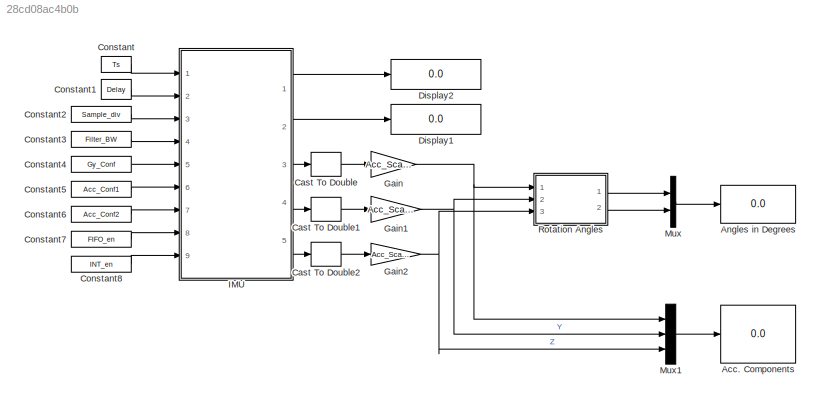
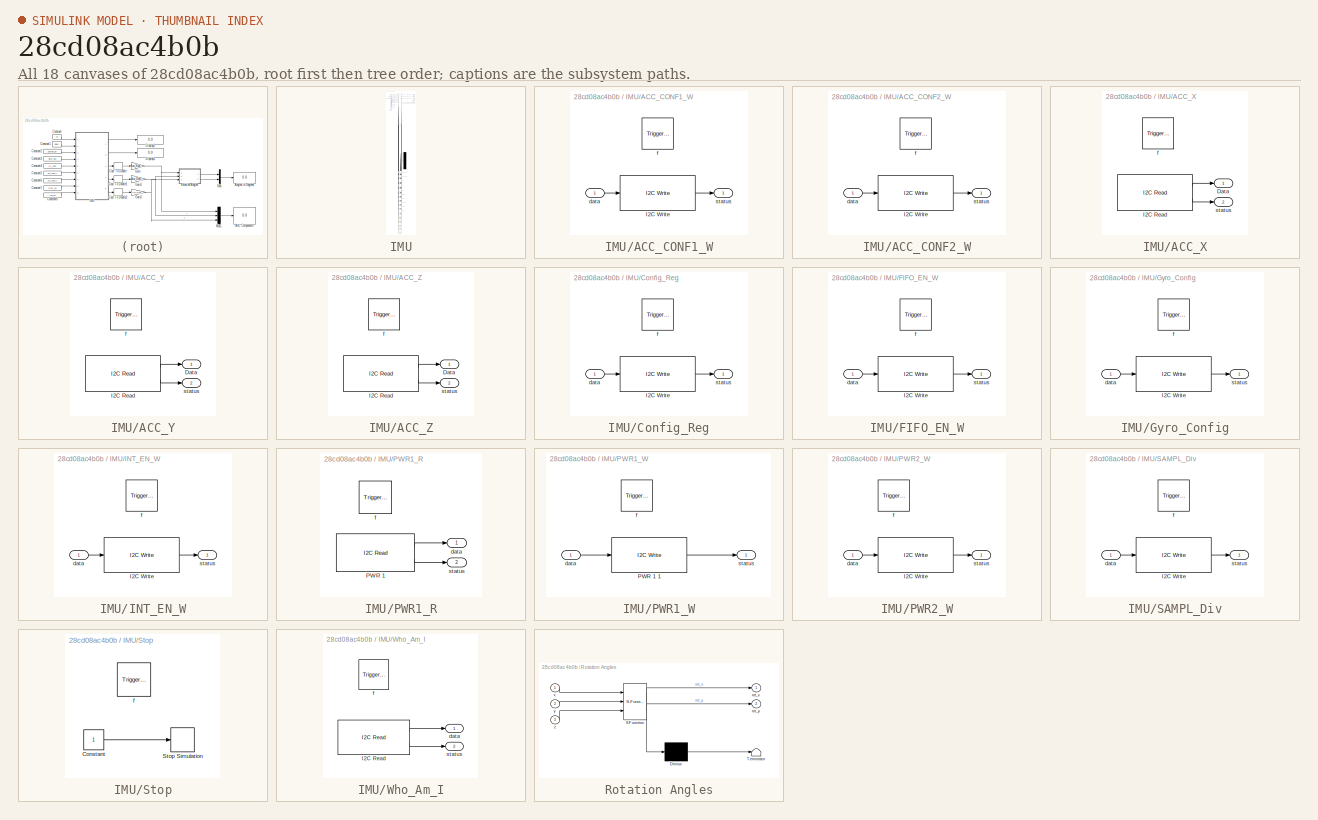
[diagram: thumbnail index - all 18 canvases of the model, root first then tree order]
MODEL slx_28cd08ac4b0b
KIND model
CONFIG AbsTol = auto
CONFIG EnableMultiTasking = on
CONFIG FixedStep = auto
CONFIG InitFcn = Ts=0.1;\nDelay=5;\nSample_div=uint8(9);\nFilter_BW=uint8(2);  %cutoff 92 Hz\nGy_Conf=uint8(0); %-250dps to 250 dps\nAcc_Conf1=uint8(0);\nAcc_Conf2=uint8(2);\nFIFO_en=uint8(0); % Disabled\nINT_en=uint8(0); % Disabled\nAcc_Scale=2*9.81/32767;\n\n%Registers\nIMU_Add=104;\nWho_Am_I=117;\nPWR_1=107;\nPWR_2=108;\nSAMPL_DIV=25;\nCONFIG_REG=26;\nGYRO_CONFIG=27;\nACC_CONFIG_1=28;\nACC_CONFIG_2=29;\nFIFO_EN=35;\nINT_EN=56;\nGY_X_...<+323ch>
CONFIG MaxStep = auto
CONFIG MinStep = auto
CONFIG RelTol = 1e-3
CONFIG SampleTimeConstraint = Unconstrained
CONFIG Solver = FixedStepAuto
CONFIG SolverName = FixedStepAuto
CONFIG StartTime = 0.0
CONFIG StopTime = inf
BLOCK [Display] Acc. Components
  Decimation = 1
  Ports = [1]
BLOCK [Display] Angles in Degrees
  Decimation = 1
  Ports = [1]
BLOCK [DataTypeConversion] Cast To Double
  OutDataTypeStr = double
  RndMeth = Floor
  SaturateOnIntegerOverflow = off
BLOCK [DataTypeConversion] Cast To Double1
  OutDataTypeStr = double
  RndMeth = Floor
  SaturateOnIntegerOverflow = off
BLOCK [DataTypeConversion] Cast To Double2
  OutDataTypeStr = double
  RndMeth = Floor
  SaturateOnIntegerOverflow = off
BLOCK [Constant] Constant
  Value = Ts
BLOCK [Constant] Constant1
  Value = Delay
BLOCK [Constant] Constant2
  Value = Sample_div
BLOCK [Constant] Constant3
  Value = Filter_BW
BLOCK [Constant] Constant4
  Value = Gy_Conf
BLOCK [Constant] Constant5
  Value = Acc_Conf1
BLOCK [Constant] Constant6
  Value = Acc_Conf2
BLOCK [Constant] Constant7
  Value = FIFO_en
BLOCK [Constant] Constant8
  Value = INT_en
BLOCK [Display] Display1
  Decimation = 1
  Ports = [1]
BLOCK [Display] Display2
  Decimation = 1
  Ports = [1]
BLOCK [Gain] Gain
  Gain = Acc_Scale
  OutDataTypeStr = Inherit: Inherit via internal rule
  ParamDataTypeStr = Inherit: Inherit via internal rule
  SaturateOnIntegerOverflow = off
BLOCK [Gain] Gain1
  Gain = Acc_Scale
  OutDataTypeStr = Inherit: Inherit via internal rule
  ParamDataTypeStr = Inherit: Inherit via internal rule
  SaturateOnIntegerOverflow = off
BLOCK [Gain] Gain2
  Gain = Acc_Scale
  OutDataTypeStr = Inherit: Inherit via internal rule
  ParamDataTypeStr = Inherit: Inherit via internal rule
  SaturateOnIntegerOverflow = off
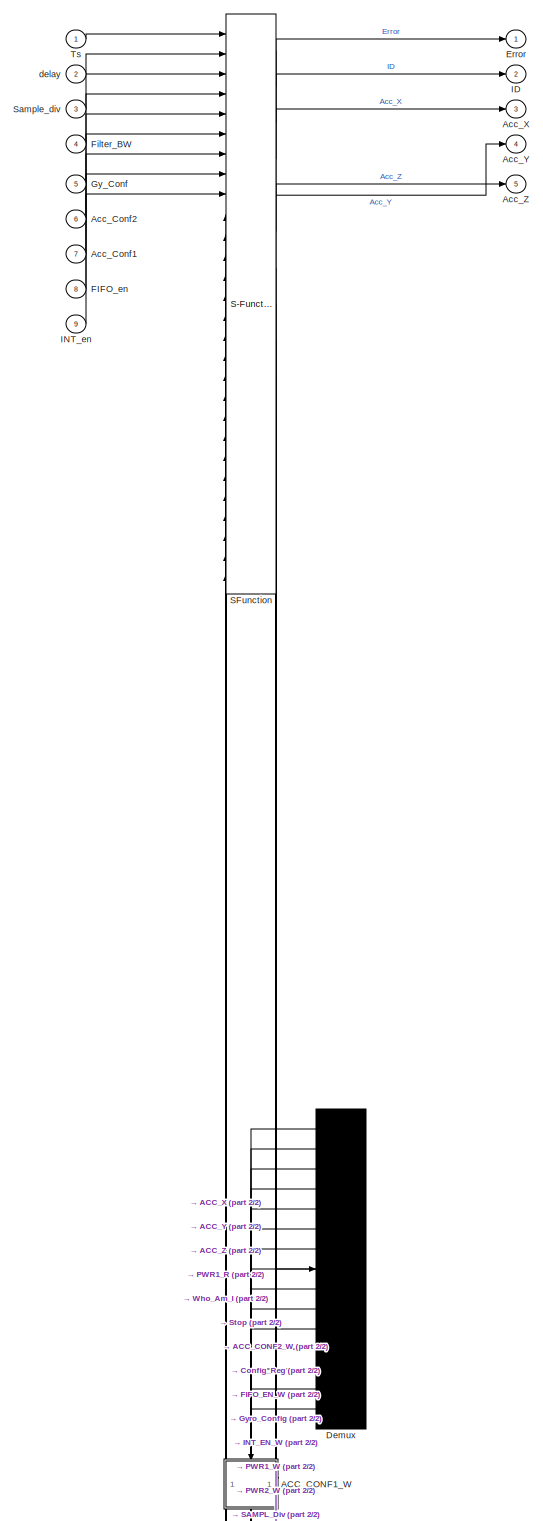
[diagram: IMU - part 1/2, full width, top band]
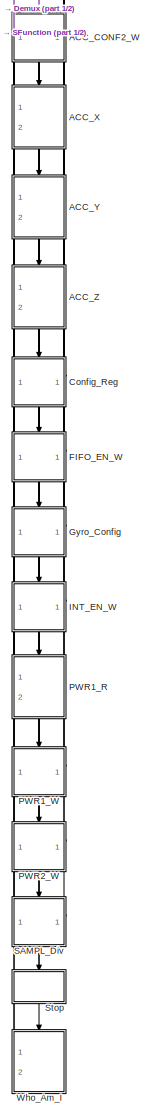
[diagram: IMU - part 2/2, bottom center region]
BLOCK [SubSystem] IMU
  ErrorFcn = Stateflow.Translate.translate
  PermitHierarchicalResolution = ExplicitOnly
  Ports = [9, 5]
  RequestExecContextInheritance = off
  SFBlockType = Chart
  TreatAsAtomicUnit = on
BLOCK [Demux] IMU/ Demux 
  Outputs = 15
  Ports = [1, 15]
BLOCK [S-Function] IMU/ SFunction 
  EnableBusSupport = on
  FunctionName = sf_sfun
  PortCounts = [28 15]
  Ports = [28, 15]
  SFcnIsStateOwnerBlock = off
  SFunctionDeploymentMode = off
  Tag = Stateflow S-Function IMU 3
BLOCK [SubSystem] IMU/ACC_CONF1_W
  Ports = [1, 1, 0, 1]
  PreDeleteFcn = Stateflow.SLINSF.SimulinkMan.removePreDeleteFcn
  RequestExecContextInheritance = off
  UndoDeleteFcn = Stateflow.SLINSF.SimulinkMan.restorePreDeleteFcn
BLOCK [Reference] IMU/ACC_CONF1_W/I2C Write  REF=arduinolib/I2C Write
  Ports = [1, 1]
  SourceBlock = arduinolib/I2C Write
  SourceProductBaseCode = ARDUINO
  SourceProductName = Simulink Support Package for Arduino Hardware
  SourceType = I2C Write
BLOCK [Inport] IMU/ACC_CONF1_W/data
  IconDisplay = Port number
  OutDataTypeStr = uint8
  PortDimensions = 1
  SignalType = real
  VarSizeSig = No
BLOCK [TriggerPort] IMU/ACC_CONF1_W/f
  CopyFcn = Stateflow.SLINSF.SimulinkMan.removeBlockPreDeleteFcn
  Ports = []
  PreDeleteFcn = Stateflow.SLINSF.SimulinkMan.unsafePredeleteFcn
  StatesWhenEnabling = held
  TriggerType = function-call
  VariantControl = (inherit)
BLOCK [Outport] IMU/ACC_CONF1_W/status
  IconDisplay = Port number
  VectorParamsAs1DForOutWhenUnconnected = off
BLOCK [SubSystem] IMU/ACC_CONF2_W
  Ports = [1, 1, 0, 1]
  PreDeleteFcn = Stateflow.SLINSF.SimulinkMan.removePreDeleteFcn
  RequestExecContextInheritance = off
  UndoDeleteFcn = Stateflow.SLINSF.SimulinkMan.restorePreDeleteFcn
BLOCK [Reference] IMU/ACC_CONF2_W/I2C Write  REF=arduinolib/I2C Write
  Ports = [1, 1]
  SourceBlock = arduinolib/I2C Write
  SourceProductBaseCode = ARDUINO
  SourceProductName = Simulink Support Package for Arduino Hardware
  SourceType = I2C Write
BLOCK [Inport] IMU/ACC_CONF2_W/data
  IconDisplay = Port number
  OutDataTypeStr = uint8
  PortDimensions = 1
  SignalType = real
  VarSizeSig = No
BLOCK [TriggerPort] IMU/ACC_CONF2_W/f
  CopyFcn = Stateflow.SLINSF.SimulinkMan.removeBlockPreDeleteFcn
  Ports = []
  PreDeleteFcn = Stateflow.SLINSF.SimulinkMan.unsafePredeleteFcn
  StatesWhenEnabling = held
  TriggerType = function-call
  VariantControl = (inherit)
BLOCK [Outport] IMU/ACC_CONF2_W/status
  IconDisplay = Port number
  VectorParamsAs1DForOutWhenUnconnected = off
BLOCK [SubSystem] IMU/ACC_X
  Ports = [0, 2, 0, 1]
  PreDeleteFcn = Stateflow.SLINSF.SimulinkMan.removePreDeleteFcn
  RequestExecContextInheritance = off
  UndoDeleteFcn = Stateflow.SLINSF.SimulinkMan.restorePreDeleteFcn
BLOCK [Outport] IMU/ACC_X/Data
  IconDisplay = Port number
  VectorParamsAs1DForOutWhenUnconnected = off
BLOCK [Reference] IMU/ACC_X/I2C Read  REF=arduinolib/I2C Read
  Ports = [0, 2]
  SourceBlock = arduinolib/I2C Read
  SourceProductBaseCode = ARDUINO
  SourceProductName = Simulink Support Package for Arduino Hardware
  SourceType = I2C Read
BLOCK [TriggerPort] IMU/ACC_X/f
  CopyFcn = Stateflow.SLINSF.SimulinkMan.removeBlockPreDeleteFcn
  Ports = []
  PreDeleteFcn = Stateflow.SLINSF.SimulinkMan.unsafePredeleteFcn
  StatesWhenEnabling = held
  TriggerType = function-call
  VariantControl = (inherit)
BLOCK [Outport] IMU/ACC_X/status
  IconDisplay = Port number
  Port = 2
  VectorParamsAs1DForOutWhenUnconnected = off
BLOCK [SubSystem] IMU/ACC_Y
  Ports = [0, 2, 0, 1]
  PreDeleteFcn = Stateflow.SLINSF.SimulinkMan.removePreDeleteFcn
  RequestExecContextInheritance = off
  UndoDeleteFcn = Stateflow.SLINSF.SimulinkMan.restorePreDeleteFcn
BLOCK [Outport] IMU/ACC_Y/Data
  IconDisplay = Port number
  VectorParamsAs1DForOutWhenUnconnected = off
BLOCK [Reference] IMU/ACC_Y/I2C Read  REF=arduinolib/I2C Read
  Ports = [0, 2]
  SourceBlock = arduinolib/I2C Read
  SourceProductBaseCode = ARDUINO
  SourceProductName = Simulink Support Package for Arduino Hardware
  SourceType = I2C Read
BLOCK [TriggerPort] IMU/ACC_Y/f
  CopyFcn = Stateflow.SLINSF.SimulinkMan.removeBlockPreDeleteFcn
  Ports = []
  PreDeleteFcn = Stateflow.SLINSF.SimulinkMan.unsafePredeleteFcn
  StatesWhenEnabling = held
  TriggerType = function-call
  VariantControl = (inherit)
BLOCK [Outport] IMU/ACC_Y/status
  IconDisplay = Port number
  Port = 2
  VectorParamsAs1DForOutWhenUnconnected = off
BLOCK [SubSystem] IMU/ACC_Z
  Ports = [0, 2, 0, 1]
  PreDeleteFcn = Stateflow.SLINSF.SimulinkMan.removePreDeleteFcn
  RequestExecContextInheritance = off
  UndoDeleteFcn = Stateflow.SLINSF.SimulinkMan.restorePreDeleteFcn
BLOCK [Outport] IMU/ACC_Z/Data
  IconDisplay = Port number
  VectorParamsAs1DForOutWhenUnconnected = off
BLOCK [Reference] IMU/ACC_Z/I2C Read  REF=arduinolib/I2C Read
  Ports = [0, 2]
  SourceBlock = arduinolib/I2C Read
  SourceProductBaseCode = ARDUINO
  SourceProductName = Simulink Support Package for Arduino Hardware
  SourceType = I2C Read
BLOCK [TriggerPort] IMU/ACC_Z/f
  CopyFcn = Stateflow.SLINSF.SimulinkMan.removeBlockPreDeleteFcn
  Ports = []
  PreDeleteFcn = Stateflow.SLINSF.SimulinkMan.unsafePredeleteFcn
  StatesWhenEnabling = held
  TriggerType = function-call
  VariantControl = (inherit)
BLOCK [Outport] IMU/ACC_Z/status
  IconDisplay = Port number
  Port = 2
  VectorParamsAs1DForOutWhenUnconnected = off
BLOCK [Inport] IMU/Acc_Conf1
  IconDisplay = Port number
  Port = 7
BLOCK [Inport] IMU/Acc_Conf2
  IconDisplay = Port number
  Port = 6
BLOCK [Outport] IMU/Acc_X
  IconDisplay = Port number
  Port = 3
BLOCK [Outport] IMU/Acc_Y
  IconDisplay = Port number
  Port = 4
BLOCK [Outport] IMU/Acc_Z
  IconDisplay = Port number
  Port = 5
BLOCK [SubSystem] IMU/Config_Reg
  Ports = [1, 1, 0, 1]
  PreDeleteFcn = Stateflow.SLINSF.SimulinkMan.removePreDeleteFcn
  RequestExecContextInheritance = off
  UndoDeleteFcn = Stateflow.SLINSF.SimulinkMan.restorePreDeleteFcn
BLOCK [Reference] IMU/Config_Reg/I2C Write  REF=arduinolib/I2C Write
  Ports = [1, 1]
  SourceBlock = arduinolib/I2C Write
  SourceProductBaseCode = ARDUINO
  SourceProductName = Simulink Support Package for Arduino Hardware
  SourceType = I2C Write
BLOCK [Inport] IMU/Config_Reg/data
  IconDisplay = Port number
  OutDataTypeStr = uint8
  PortDimensions = 1
  SignalType = real
  VarSizeSig = No
BLOCK [TriggerPort] IMU/Config_Reg/f
  CopyFcn = Stateflow.SLINSF.SimulinkMan.removeBlockPreDeleteFcn
  Ports = []
  PreDeleteFcn = Stateflow.SLINSF.SimulinkMan.unsafePredeleteFcn
  StatesWhenEnabling = held
  TriggerType = function-call
  VariantControl = (inherit)
BLOCK [Outport] IMU/Config_Reg/status
  IconDisplay = Port number
  VectorParamsAs1DForOutWhenUnconnected = off
BLOCK [Outport] IMU/Error
  IconDisplay = Port number
  VectorParamsAs1DForOutWhenUnconnected = off
BLOCK [SubSystem] IMU/FIFO_EN_W
  Ports = [1, 1, 0, 1]
  PreDeleteFcn = Stateflow.SLINSF.SimulinkMan.removePreDeleteFcn
  RequestExecContextInheritance = off
  UndoDeleteFcn = Stateflow.SLINSF.SimulinkMan.restorePreDeleteFcn
BLOCK [Reference] IMU/FIFO_EN_W/I2C Write  REF=arduinolib/I2C Write
  Ports = [1, 1]
  SourceBlock = arduinolib/I2C Write
  SourceProductBaseCode = ARDUINO
  SourceProductName = Simulink Support Package for Arduino Hardware
  SourceType = I2C Write
BLOCK [Inport] IMU/FIFO_EN_W/data
  IconDisplay = Port number
  OutDataTypeStr = uint8
  PortDimensions = 1
  SignalType = real
  VarSizeSig = No
BLOCK [TriggerPort] IMU/FIFO_EN_W/f
  CopyFcn = Stateflow.SLINSF.SimulinkMan.removeBlockPreDeleteFcn
  Ports = []
  PreDeleteFcn = Stateflow.SLINSF.SimulinkMan.unsafePredeleteFcn
  StatesWhenEnabling = held
  TriggerType = function-call
  VariantControl = (inherit)
BLOCK [Outport] IMU/FIFO_EN_W/status
  IconDisplay = Port number
  VectorParamsAs1DForOutWhenUnconnected = off
BLOCK [Inport] IMU/FIFO_en
  IconDisplay = Port number
  Port = 8
BLOCK [Inport] IMU/Filter_BW
  IconDisplay = Port number
  Port = 4
BLOCK [Inport] IMU/Gy_Conf
  IconDisplay = Port number
  Port = 5
BLOCK [SubSystem] IMU/Gyro_Config
  Ports = [1, 1, 0, 1]
  PreDeleteFcn = Stateflow.SLINSF.SimulinkMan.removePreDeleteFcn
  RequestExecContextInheritance = off
  UndoDeleteFcn = Stateflow.SLINSF.SimulinkMan.restorePreDeleteFcn
BLOCK [Reference] IMU/Gyro_Config/I2C Write  REF=arduinolib/I2C Write
  Ports = [1, 1]
  SourceBlock = arduinolib/I2C Write
  SourceProductBaseCode = ARDUINO
  SourceProductName = Simulink Support Package for Arduino Hardware
  SourceType = I2C Write
BLOCK [Inport] IMU/Gyro_Config/data
  IconDisplay = Port number
  OutDataTypeStr = uint8
  PortDimensions = 1
  SignalType = real
  VarSizeSig = No
BLOCK [TriggerPort] IMU/Gyro_Config/f
  CopyFcn = Stateflow.SLINSF.SimulinkMan.removeBlockPreDeleteFcn
  Ports = []
  PreDeleteFcn = Stateflow.SLINSF.SimulinkMan.unsafePredeleteFcn
  StatesWhenEnabling = held
  TriggerType = function-call
  VariantControl = (inherit)
BLOCK [Outport] IMU/Gyro_Config/status
  IconDisplay = Port number
  VectorParamsAs1DForOutWhenUnconnected = off
BLOCK [Outport] IMU/ID
  IconDisplay = Port number
  Port = 2
  VectorParamsAs1DForOutWhenUnconnected = off
BLOCK [SubSystem] IMU/INT_EN_W
  Ports = [1, 1, 0, 1]
  PreDeleteFcn = Stateflow.SLINSF.SimulinkMan.removePreDeleteFcn
  RequestExecContextInheritance = off
  UndoDeleteFcn = Stateflow.SLINSF.SimulinkMan.restorePreDeleteFcn
BLOCK [Reference] IMU/INT_EN_W/I2C Write  REF=arduinolib/I2C Write
  Ports = [1, 1]
  SourceBlock = arduinolib/I2C Write
  SourceProductBaseCode = ARDUINO
  SourceProductName = Simulink Support Package for Arduino Hardware
  SourceType = I2C Write
BLOCK [Inport] IMU/INT_EN_W/data
  IconDisplay = Port number
  OutDataTypeStr = uint8
  PortDimensions = 1
  SignalType = real
  VarSizeSig = No
BLOCK [TriggerPort] IMU/INT_EN_W/f
  CopyFcn = Stateflow.SLINSF.SimulinkMan.removeBlockPreDeleteFcn
  Ports = []
  PreDeleteFcn = Stateflow.SLINSF.SimulinkMan.unsafePredeleteFcn
  StatesWhenEnabling = held
  TriggerType = function-call
  VariantControl = (inherit)
BLOCK [Outport] IMU/INT_EN_W/status
  IconDisplay = Port number
  VectorParamsAs1DForOutWhenUnconnected = off
BLOCK [Inport] IMU/INT_en
  IconDisplay = Port number
  Port = 9
BLOCK [SubSystem] IMU/PWR1_R
  Ports = [0, 2, 0, 1]
  PreDeleteFcn = Stateflow.SLINSF.SimulinkMan.removePreDeleteFcn
  RequestExecContextInheritance = off
  UndoDeleteFcn = Stateflow.SLINSF.SimulinkMan.restorePreDeleteFcn
BLOCK [Reference] IMU/PWR1_R/PWR 1  REF=arduinolib/I2C Read
  Ports = [0, 2]
  SourceBlock = arduinolib/I2C Read
  SourceProductBaseCode = ARDUINO
  SourceProductName = Simulink Support Package for Arduino Hardware
  SourceType = I2C Read
BLOCK [Outport] IMU/PWR1_R/data
  IconDisplay = Port number
  VectorParamsAs1DForOutWhenUnconnected = off
BLOCK [TriggerPort] IMU/PWR1_R/f
  CopyFcn = Stateflow.SLINSF.SimulinkMan.removeBlockPreDeleteFcn
  Ports = []
  PreDeleteFcn = Stateflow.SLINSF.SimulinkMan.unsafePredeleteFcn
  StatesWhenEnabling = held
  TriggerType = function-call
  VariantControl = (inherit)
BLOCK [Outport] IMU/PWR1_R/status
  IconDisplay = Port number
  Port = 2
  VectorParamsAs1DForOutWhenUnconnected = off
BLOCK [SubSystem] IMU/PWR1_W
  Ports = [1, 1, 0, 1]
  PreDeleteFcn = Stateflow.SLINSF.SimulinkMan.removePreDeleteFcn
  RequestExecContextInheritance = off
  UndoDeleteFcn = Stateflow.SLINSF.SimulinkMan.restorePreDeleteFcn
BLOCK [Reference] IMU/PWR1_W/PWR 1 1  REF=arduinolib/I2C Write
  Ports = [1, 1]
  SourceBlock = arduinolib/I2C Write
  SourceProductBaseCode = ARDUINO
  SourceProductName = Simulink Support Package for Arduino Hardware
  SourceType = I2C Write
BLOCK [Inport] IMU/PWR1_W/data
  IconDisplay = Port number
  OutDataTypeStr = uint8
  PortDimensions = 1
  SignalType = real
  VarSizeSig = No
BLOCK [TriggerPort] IMU/PWR1_W/f
  CopyFcn = Stateflow.SLINSF.SimulinkMan.removeBlockPreDeleteFcn
  Ports = []
  PreDeleteFcn = Stateflow.SLINSF.SimulinkMan.unsafePredeleteFcn
  StatesWhenEnabling = held
  TriggerType = function-call
  VariantControl = (inherit)
BLOCK [Outport] IMU/PWR1_W/status
  IconDisplay = Port number
  VectorParamsAs1DForOutWhenUnconnected = off
BLOCK [SubSystem] IMU/PWR2_W
  Ports = [1, 1, 0, 1]
  PreDeleteFcn = Stateflow.SLINSF.SimulinkMan.removePreDeleteFcn
  RequestExecContextInheritance = off
  UndoDeleteFcn = Stateflow.SLINSF.SimulinkMan.restorePreDeleteFcn
BLOCK [Reference] IMU/PWR2_W/I2C Write  REF=arduinolib/I2C Write
  Ports = [1, 1]
  SourceBlock = arduinolib/I2C Write
  SourceProductBaseCode = ARDUINO
  SourceProductName = Simulink Support Package for Arduino Hardware
  SourceType = I2C Write
BLOCK [Inport] IMU/PWR2_W/data
  IconDisplay = Port number
  OutDataTypeStr = uint8
  PortDimensions = 1
  SignalType = real
  VarSizeSig = No
BLOCK [TriggerPort] IMU/PWR2_W/f
  CopyFcn = Stateflow.SLINSF.SimulinkMan.removeBlockPreDeleteFcn
  Ports = []
  PreDeleteFcn = Stateflow.SLINSF.SimulinkMan.unsafePredeleteFcn
  StatesWhenEnabling = held
  TriggerType = function-call
  VariantControl = (inherit)
BLOCK [Outport] IMU/PWR2_W/status
  IconDisplay = Port number
  VectorParamsAs1DForOutWhenUnconnected = off
BLOCK [SubSystem] IMU/SAMPL_Div
  Ports = [1, 1, 0, 1]
  PreDeleteFcn = Stateflow.SLINSF.SimulinkMan.removePreDeleteFcn
  RequestExecContextInheritance = off
  UndoDeleteFcn = Stateflow.SLINSF.SimulinkMan.restorePreDeleteFcn
BLOCK [Reference] IMU/SAMPL_Div/I2C Write  REF=arduinolib/I2C Write
  Ports = [1, 1]
  SourceBlock = arduinolib/I2C Write
  SourceProductBaseCode = ARDUINO
  SourceProductName = Simulink Support Package for Arduino Hardware
  SourceType = I2C Write
BLOCK [Inport] IMU/SAMPL_Div/data
  IconDisplay = Port number
  OutDataTypeStr = uint8
  PortDimensions = 1
  SignalType = real
  VarSizeSig = No
BLOCK [TriggerPort] IMU/SAMPL_Div/f
  CopyFcn = Stateflow.SLINSF.SimulinkMan.removeBlockPreDeleteFcn
  Ports = []
  PreDeleteFcn = Stateflow.SLINSF.SimulinkMan.unsafePredeleteFcn
  StatesWhenEnabling = held
  TriggerType = function-call
  VariantControl = (inherit)
BLOCK [Outport] IMU/SAMPL_Div/status
  IconDisplay = Port number
  VectorParamsAs1DForOutWhenUnconnected = off
BLOCK [Inport] IMU/Sample_div
  IconDisplay = Port number
  Port = 3
BLOCK [SubSystem] IMU/Stop
  Ports = [0, 0, 0, 1]
  PreDeleteFcn = Stateflow.SLINSF.SimulinkMan.removePreDeleteFcn
  RequestExecContextInheritance = off
  UndoDeleteFcn = Stateflow.SLINSF.SimulinkMan.restorePreDeleteFcn
BLOCK [Constant] IMU/Stop/Constant
BLOCK [Stop] IMU/Stop/Stop Simulation
BLOCK [TriggerPort] IMU/Stop/f
  CopyFcn = Stateflow.SLINSF.SimulinkMan.removeBlockPreDeleteFcn
  Ports = []
  PreDeleteFcn = Stateflow.SLINSF.SimulinkMan.unsafePredeleteFcn
  StatesWhenEnabling = held
  TriggerType = function-call
  VariantControl = (inherit)
BLOCK [Inport] IMU/Ts
  IconDisplay = Port number
BLOCK [SubSystem] IMU/Who_Am_I
  Ports = [0, 2, 0, 1]
  PreDeleteFcn = Stateflow.SLINSF.SimulinkMan.removePreDeleteFcn
  RequestExecContextInheritance = off
  UndoDeleteFcn = Stateflow.SLINSF.SimulinkMan.restorePreDeleteFcn
BLOCK [Reference] IMU/Who_Am_I/I2C Read  REF=arduinolib/I2C Read
  Ports = [0, 2]
  SourceBlock = arduinolib/I2C Read
  SourceProductBaseCode = ARDUINO
  SourceProductName = Simulink Support Package for Arduino Hardware
  SourceType = I2C Read
BLOCK [Outport] IMU/Who_Am_I/data
  IconDisplay = Port number
  VectorParamsAs1DForOutWhenUnconnected = off
BLOCK [TriggerPort] IMU/Who_Am_I/f
  CopyFcn = Stateflow.SLINSF.SimulinkMan.removeBlockPreDeleteFcn
  Ports = []
  PreDeleteFcn = Stateflow.SLINSF.SimulinkMan.unsafePredeleteFcn
  StatesWhenEnabling = held
  TriggerType = function-call
  VariantControl = (inherit)
BLOCK [Outport] IMU/Who_Am_I/status
  IconDisplay = Port number
  Port = 2
  VectorParamsAs1DForOutWhenUnconnected = off
BLOCK [Inport] IMU/delay
  IconDisplay = Port number
  Port = 2
BLOCK [Mux] Mux
  DisplayOption = bar
  Inputs = 2
  Ports = [2, 1]
BLOCK [Mux] Mux1
  DisplayOption = bar
  Inputs = 3
  Ports = [3, 1]
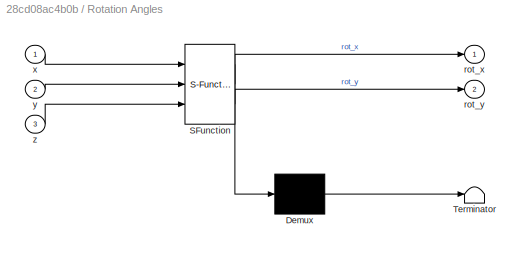
BLOCK [SubSystem] Rotation Angles
  ErrorFcn = Stateflow.Translate.translate
  PermitHierarchicalResolution = ExplicitOnly
  Ports = [3, 2]
  RequestExecContextInheritance = off
  SFBlockType = MATLAB Function
  TreatAsAtomicUnit = on
BLOCK [Demux] Rotation Angles/ Demux 
  Outputs = 1
  Ports = [1, 1]
BLOCK [S-Function] Rotation Angles/ SFunction 
  EnableBusSupport = on
  FunctionName = sf_sfun
  PortCounts = [3 3]
  Ports = [3, 3]
  SFcnIsStateOwnerBlock = off
  SFunctionDeploymentMode = off
  Tag = Stateflow S-Function IMU 2
BLOCK [Terminator] Rotation Angles/ Terminator 
BLOCK [Outport] Rotation Angles/rot_x
  IconDisplay = Port number
BLOCK [Outport] Rotation Angles/rot_y
  IconDisplay = Port number
  Port = 2
BLOCK [Inport] Rotation Angles/x
  IconDisplay = Port number
BLOCK [Inport] Rotation Angles/y
  IconDisplay = Port number
  Port = 2
BLOCK [Inport] Rotation Angles/z
  IconDisplay = Port number
  Port = 3
LINE Cast To Double1:1 -> Gain1:1
LINE Cast To Double2:1 -> Gain2:1
LINE Cast To Double:1 -> Gain:1
LINE Constant1:1 -> IMU:2
LINE Constant2:1 -> IMU:3
LINE Constant3:1 -> IMU:4
LINE Constant4:1 -> IMU:5
LINE Constant5:1 -> IMU:6
LINE Constant6:1 -> IMU:7
LINE Constant7:1 -> IMU:8
LINE Constant8:1 -> IMU:9
LINE Constant:1 -> IMU:1
NET Gain1:1 -> Mux1:2, Rotation Angles:2
NET Gain2:1 -> Mux1:3, Rotation Angles:3
NET Gain:1 -> Mux1:1, Rotation Angles:1
LINE IMU:1 -> Display2:1
LINE IMU:2 -> Display1:1
LINE IMU:3 -> Cast To Double:1
LINE IMU:4 -> Cast To Double1:1
LINE IMU:5 -> Cast To Double2:1
LINE Mux1:1 -> Acc. Components:1
LINE Mux:1 -> Angles in Degrees:1
LINE Rotation Angles:1 -> Mux:1
LINE Rotation Angles:2 -> Mux:2
note: NET lines group one-source signal fan-out (src -> all destinations, sorted); 1:1 wires keep LINE
CHART Rotation Angles states=1 transitions=1
  STATE_LABEL 'eML_blk_kernel()'
  STATE_LABEL 'SCRIPT:\nfunction [rot_x,rot_y] = fcn(x,y,z)\n  th=0.1;\n  nor=sqrt(x^2+y^2+z^2);\n  if(nor==0)\n      nor=1;\n  end\n  x=x/nor;\n  y=y/nor;\n  z=z/nor;\n  if(abs(x)<=th)\n      x=0;\n  end\n  if(abs(y)<=th)\n      y=0;\n  end\n  if(abs(z)<=th)\n      z=0;\n  end\n  rot_x=atan2(y,z)*180/pi;\n  rot_y=atan2(-x,sqrt(y^2+z^2))*180/pi;\n end\n'
CHART IMU states=33 transitions=28
  STATE_LABEL 'Stop'
  STATE_LABEL '[data,status] = Who_Am_I'
  STATE_LABEL '[data,status] = PWR1_R'
  STATE_LABEL 'status=PWR1_W(data)'
  STATE_LABEL 'status=PWR2_W(data)'
  STATE_LABEL 'status = SAMPL_Div(data)'
  STATE_LABEL 'status = Config_Reg(data)'
  STATE_LABEL 'Measurments\nen:\nstatus=uint8(1);\nstatus1=uint8(1);\nstatus2=uint8(1);'
  STATE_LABEL 'ACC_X\ndu:\n[Acc_X,status] = ACC_X;\n'
  STATE_LABEL 'ACC_Y\ndu:\n[ Acc_Y,status1] = ACC_Y;\n'
  STATE_LABEL 'ACC_Z\ndu:\n[Acc_Z,status2] = ACC_Z;\n'
  STATE_LABEL '[status==0]'
  STATE_LABEL '[status1==0]'
  STATE_LABEL 'ACC_X\ndu:\n[Acc_X,status] = ACC_X;\n'
  STATE_LABEL 'ACC_Y\ndu:\n[ Acc_Y,status1] = ACC_Y;\n'
  STATE_LABEL 'ACC_Z\ndu:\n[Acc_Z,status2] = ACC_Z;\n'
  STATE_LABEL 'PWR_Adj\nen:\nstatus=uint8(1);\nstatus1=uint8(1);\nstatus2=uint8(1);\n'
  STATE_LABEL 'PWR1_R\ndu:\n[data,status]=PWR1_R();'
  STATE_LABEL 'PWR1_W\ndu:\nstatus1=PWR1_W(uint8(and(5,data)));'
  STATE_LABEL 'PWR2_W1\ndu:\nstatus2= PWR2_W(uint8(0));'
  STATE_LABEL '[status==0]'
  STATE_LABEL '[status1==0]'
  STATE_LABEL 'PWR1_R\ndu:\n[data,status]=PWR1_R();'
  STATE_LABEL 'PWR1_W\ndu:\nstatus1=PWR1_W(uint8(and(5,data)));'
  STATE_LABEL 'PWR2_W1\ndu:\nstatus2= PWR2_W(uint8(0));'
  STATE_LABEL 'status = Gyro_Config(data)'
  STATE_LABEL 'Acc_Conf\nen:\nstatus=uint8(1);\nstatus1=uint8(1);\n'
  STATE_LABEL 'ACC_Conf1\ndu:\nstatus = ACC_CONF1_W(Acc_Conf1);'
  STATE_LABEL 'ACC_Conf2\ndu:\nstatus1 = ACC_CONF2_W(Acc_Conf2);'
  STATE_LABEL '[status==0]'
  STATE_LABEL 'ACC_Conf1\ndu:\nstatus = ACC_CONF1_W(Acc_Conf1);'
  STATE_LABEL 'ACC_Conf2\ndu:\nstatus1 = ACC_CONF2_W(Acc_Conf2);'
  STATE_LABEL 'status = ACC_CONF1_W(data)'
  STATE_LABEL 'status = ACC_CONF2_W(data)'
  STATE_LABEL 'INT\nen:\nstatus=uint8(1);\ndu:\nstatus=INT_EN_W(INT_en);'
  STATE_LABEL 'FIFO\nen:\nstatus=uint8(1);\ndu:\nstatus=FIFO_EN_W(FIFO_en);\n'
  STATE_LABEL 'SAMPL_Rate_Div\nen:\nstatus=uint8(1);\ndu:\nstatus=SAMPL_Div(Sample_div);'
  STATE_LABEL 'Config\nen:\nstatus=uint8(1);\ndu:\nstatus = Config_Reg(Filter_BW);\n'
  STATE_LABEL 'Gyro_Conf\nen:\nstatus=uint8(1);\ndu:\nstatus=Gyro_Config(Gy_Conf);'
  STATE_LABEL 'Identification\nen:\nstatus=uint8(1);\ndu:\n[data,status]=Who_Am_I();\nID=data;\n'
